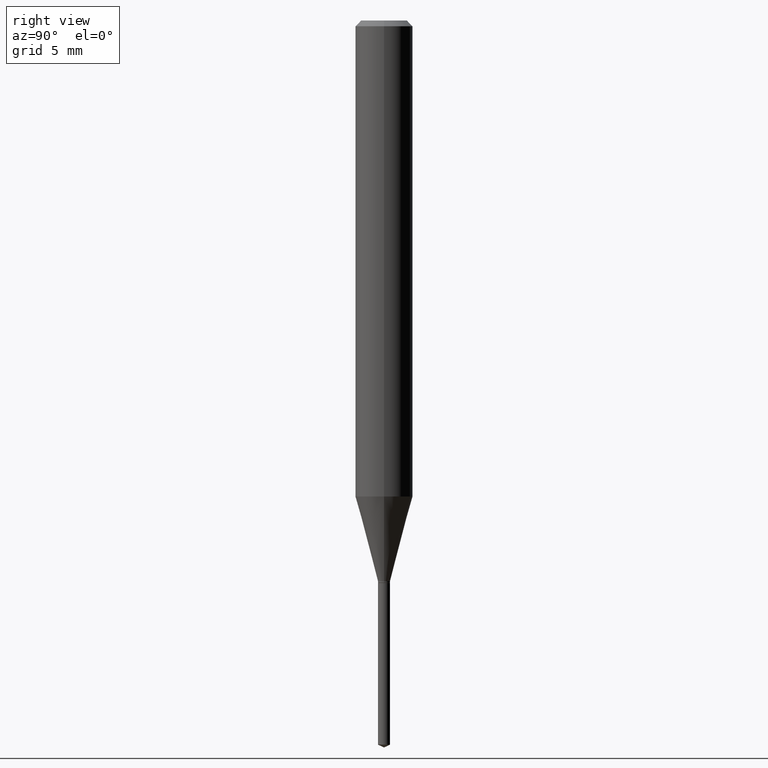
[diagram: clean part render]
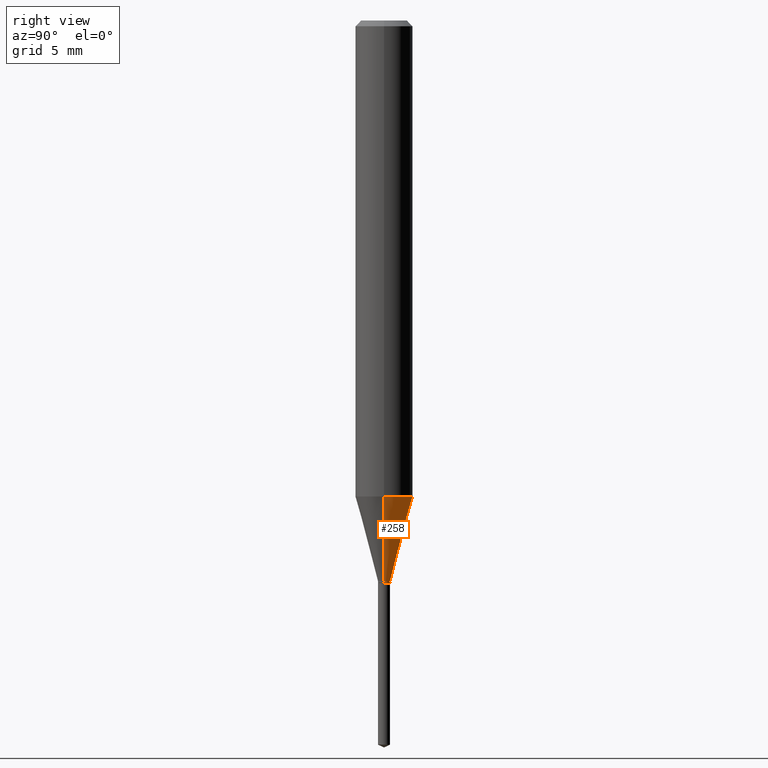
[diagram: same view with one face highlighted and labeled with its STEP entity id]
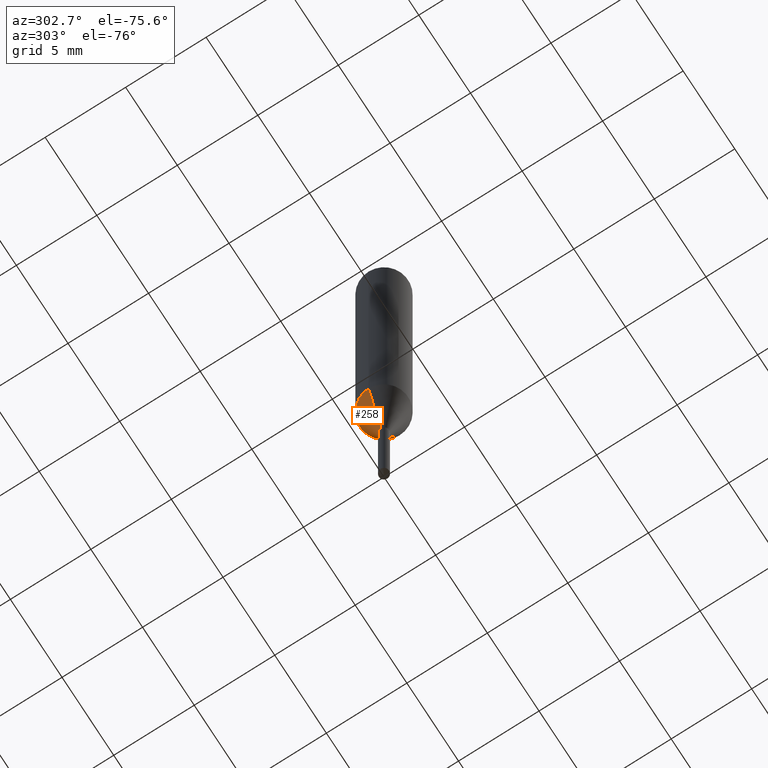
[diagram: same view with one face highlighted and labeled with its STEP entity id]
A machine part, right view. The second image highlights one B-rep face of the part: STEP entity #258.
A second angle (auxiliary view) of the same face is appended — the face is thin or edge-on in the first view.
In plain terms, the highlighted conical surface has half-angle 15 deg.
Its self-contained STEP definition (entity closure, byte-faithful):
#18 = EDGE_LOOP ( 'NONE', ( #204, #430, #426, #275 ) ) ;
#38 = DIRECTION ( 'NONE',  ( 1.000000000000000000, -6.982962677686277755E-15, 0.000000000000000000 ) ) ;
#39 = VECTOR ( 'NONE', #349, 39.37007874015747433 ) ;
#57 = AXIS2_PLACEMENT_3D ( 'NONE', #305, #385, #38 ) ;
#58 = CARTESIAN_POINT ( 'NONE',  ( 0.05905000000000011628, -3.832947619625843003E-15, -0.9796998298269117278 ) ) ;
#79 = CARTESIAN_POINT ( 'NONE',  ( 0.01239999999999999956, -4.115059905960530718E-15, -1.153799999999999937 ) ) ;
#81 = VERTEX_POINT ( 'NONE', #58 ) ;
#90 = VECTOR ( 'NONE', #285, 39.37007874015747433 ) ;
#91 = CARTESIAN_POINT ( 'NONE',  ( 2.821581908576410135E-29, -4.028471168757220985E-15, -1.153799999999999937 ) ) ;
#99 = CIRCLE ( 'NONE', #118, 0.05905000000000011628 ) ;
#116 = EDGE_CURVE ( 'NONE', #480, #212, #407, .T. ) ;
#118 = AXIS2_PLACEMENT_3D ( 'NONE', #316, #464, #391 ) ;
#133 = CARTESIAN_POINT ( 'NONE',  ( -0.01239999999999999956, -3.940363869522968799E-15, -1.153799999999999937 ) ) ;
#146 = CONICAL_SURFACE ( 'NONE', #57, 0.01239999999999999956, 0.2617993877991500740 ) ;
#148 = CARTESIAN_POINT ( 'NONE',  ( 0.01239999999999999956, -4.115059905960530718E-15, -1.153799999999999937 ) ) ;
#169 = EDGE_CURVE ( 'NONE', #297, #81, #185, .T. ) ;
#185 = LINE ( 'NONE', #148, #39 ) ;
#191 = FACE_OUTER_BOUND ( 'NONE', #18, .T. ) ;
#204 = ORIENTED_EDGE ( 'NONE', *, *, #401, .T. ) ;
#212 = VERTEX_POINT ( 'NONE', #261 ) ;
#258 = ADVANCED_FACE ( 'NONE', ( #191 ), #146, .T. ) ;
#261 = CARTESIAN_POINT ( 'NONE',  ( -0.05905000000000011628, -3.001028188042127801E-15, -0.9796998298269117278 ) ) ;
#263 = CIRCLE ( 'NONE', #417, 0.01239999999999999956 ) ;
#272 = EDGE_CURVE ( 'NONE', #81, #212, #99, .T. ) ;
#275 = ORIENTED_EDGE ( 'NONE', *, *, #169, .F. ) ;
#285 = DIRECTION ( 'NONE',  ( -0.2588190451025213501, 5.211531920934551042E-15, 0.9659258262890682012 ) ) ;
#296 = CARTESIAN_POINT ( 'NONE',  ( -0.01239999999999999956, -3.945950239665117611E-15, -1.153799999999999937 ) ) ;
#297 = VERTEX_POINT ( 'NONE', #79 ) ;
#305 = CARTESIAN_POINT ( 'NONE',  ( 2.821581908576410135E-29, -4.028471168757220985E-15, -1.153799999999999937 ) ) ;
#316 = CARTESIAN_POINT ( 'NONE',  ( 2.395825373266599197E-29, -3.420603673508467294E-15, -0.9796998298269117278 ) ) ;
#349 = DIRECTION ( 'NONE',  ( 0.2588190451025213501, 1.565188264969621968E-15, 0.9659258262890682012 ) ) ;
#355 = DIRECTION ( 'NONE',  ( -2.445468806185136597E-29, 3.491481338843145583E-15, 1.000000000000000000 ) ) ;
#385 = DIRECTION ( 'NONE',  ( -2.445468806185136597E-29, 3.491481338843145583E-15, 1.000000000000000000 ) ) ;
#391 = DIRECTION ( 'NONE',  ( 1.000000000000000000, -6.982962677686266711E-15, 0.000000000000000000 ) ) ;
#401 = EDGE_CURVE ( 'NONE', #297, #480, #263, .T. ) ;
#407 = LINE ( 'NONE', #133, #90 ) ;
#417 = AXIS2_PLACEMENT_3D ( 'NONE', #91, #355, #432 ) ;
#426 = ORIENTED_EDGE ( 'NONE', *, *, #272, .F. ) ;
#430 = ORIENTED_EDGE ( 'NONE', *, *, #116, .T. ) ;
#432 = DIRECTION ( 'NONE',  ( 1.000000000000000000, -6.982962677686277755E-15, 0.000000000000000000 ) ) ;
#464 = DIRECTION ( 'NONE',  ( -2.445468806185136597E-29, 3.491481338843145583E-15, 1.000000000000000000 ) ) ;
#480 = VERTEX_POINT ( 'NONE', #296 ) ;